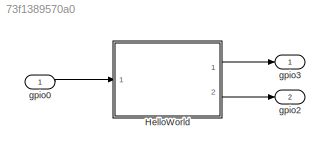
MODEL slx_73f1389570a0
KIND model
CONFIG AbsTol = auto
CONFIG EnableMultiTasking = off
CONFIG FixedStep = 0.01
CONFIG MaxStep = auto
CONFIG MinStep = auto
CONFIG RelTol = 1e-3
CONFIG SampleTimeConstraint = Unconstrained
CONFIG Solver = FixedStepDiscrete
CONFIG SolverName = FixedStepDiscrete
CONFIG StartTime = 0.0
CONFIG StopTime = inf
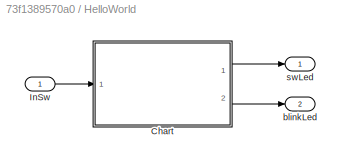
BLOCK [SubSystem] HelloWorld
  Ports = [1, 2]
  RequestExecContextInheritance = off
  TreatAsAtomicUnit = on
  Variant = off
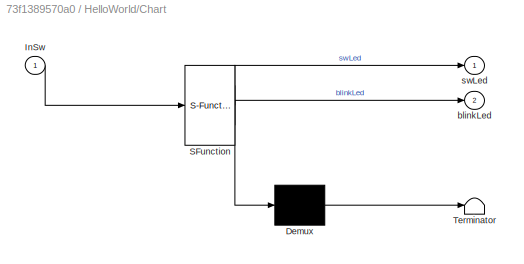
BLOCK [SubSystem] HelloWorld/Chart
  ErrorFcn = Stateflow.Translate.translate
  PermitHierarchicalResolution = ExplicitOnly
  Ports = [1, 2]
  RequestExecContextInheritance = off
  SFBlockType = Chart
  TreatAsAtomicUnit = on
  Variant = off
BLOCK [Demux] HelloWorld/Chart/ Demux 
  Outputs = 1
  Ports = [1, 1]
BLOCK [S-Function] HelloWorld/Chart/ SFunction 
  EnableBusSupport = on
  FunctionName = sf_sfun
  PortCounts = [1 3]
  Ports = [1, 3]
  SFcnIsStateOwnerBlock = off
  SFunctionDeploymentMode = off
  Tag = Stateflow S-Function HelloWorld 3
BLOCK [Terminator] HelloWorld/Chart/ Terminator 
BLOCK [Inport] HelloWorld/Chart/InSw
  IconDisplay = Port number
BLOCK [Outport] HelloWorld/Chart/blinkLed
  IconDisplay = Port number
  Port = 2
BLOCK [Outport] HelloWorld/Chart/swLed
  IconDisplay = Port number
BLOCK [Inport] HelloWorld/InSw
  IconDisplay = Port number
BLOCK [Outport] HelloWorld/blinkLed
  IconDisplay = Port number
  Port = 2
BLOCK [Outport] HelloWorld/swLed
  IconDisplay = Port number
BLOCK [Inport] gpio0
  IconDisplay = Port number
  OutDataTypeStr = boolean
BLOCK [Outport] gpio2
  IconDisplay = Port number
  Port = 2
BLOCK [Outport] gpio3
  IconDisplay = Port number
  OutDataTypeStr = boolean
LINE HelloWorld/Chart:1 -> HelloWorld/swLed:1
LINE HelloWorld/Chart:2 -> HelloWorld/blinkLed:1
LINE HelloWorld/InSw:1 -> HelloWorld/Chart:1
LINE HelloWorld:1 -> gpio3:1
LINE HelloWorld:2 -> gpio2:1
LINE gpio0:1 -> HelloWorld:1
CHART HelloWorld/Chart states=5 transitions=10
  STATE_LABEL 'LedBlinkWithConsolePrint'
  STATE_LABEL 'SerialPrint\n/* This state prints on the console */'
  STATE_LABEL '[ count1 > 1000000]'
  STATE_LABEL '{ \n count1++;\n}'
  STATE_LABEL '{\n count1 = 0;\n count2++;\n blinkLed = !blinkLed;\n printf("Execution timer has incremented by %d\\n", count2);\n}'
  STATE_LABEL 'LedOut\n/* This state reads the input switch and turns off or on the Led */'
  STATE_LABEL 'On\n/*Turn the led on*/\nen,du:\nswLed = 1;'
  STATE_LABEL 'Off\n/* Keep the led off */\nen,du:\nswLed = 0;'
  STATE_LABEL '[InSw == 1]'
  STATE_LABEL '[InSw == 0]'
  STATE_LABEL 'SerialPrint\n/* This state prints on the console */'
  STATE_LABEL '[ count1 > 1000000]'
  STATE_LABEL '{ \n count1++;\n}'
  STATE_LABEL '{\n count1 = 0;\n count2++;\n blinkLed = !blinkLed;\n printf("Execution timer has incremented by %d\\n", count2);\n}'
  STATE_LABEL 'LedOut\n/* This state reads the input switch and turns off or on the Led */'
  STATE_LABEL 'On\n/*Turn the led on*/\nen,du:\nswLed = 1;'
  STATE_LABEL 'Off\n/* Keep the led off */\nen,du:\nswLed = 0;'
  STATE_LABEL '[InSw == 1]'
  STATE_LABEL '[InSw == 0]'
  STATE_LABEL 'On\n/*Turn the led on*/\nen,du:\nswLed = 1;'
  STATE_LABEL 'Off\n/* Keep the led off */\nen,du:\nswLed = 0;'
